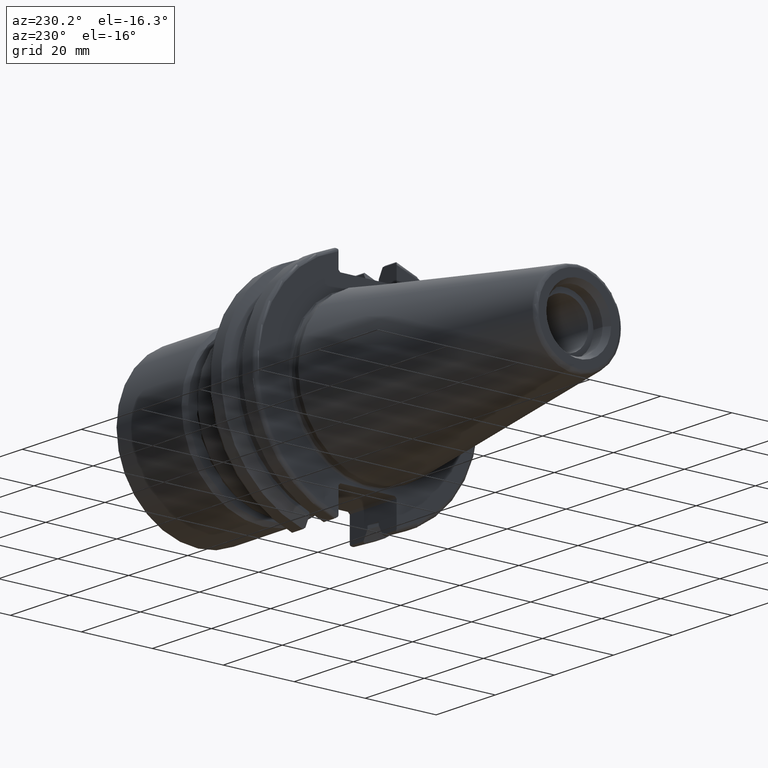
[diagram: clean part render]
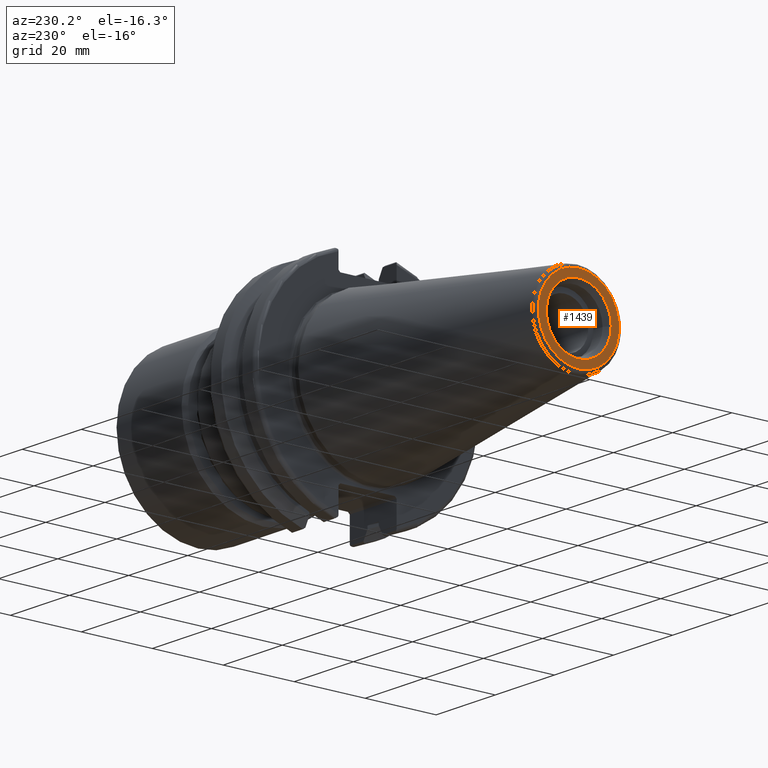
[diagram: same view with one face highlighted and labeled with its STEP entity id]
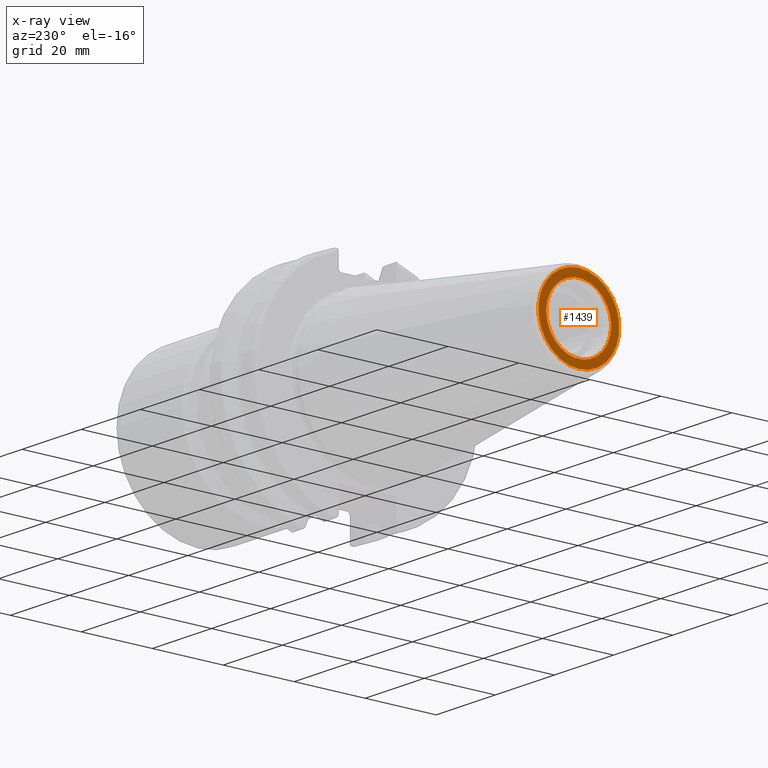
[diagram: x-ray of the same camera — body ghosted, the highlighted face saturated]
A machine part, auxiliary view. The second image highlights one B-rep face of the part: STEP entity #1439.
The next image is the same camera in x-ray: the body ghosted, the highlighted face saturated — about 0% of this face is hidden behind the body in this view.
In plain terms, the highlighted planar face has unit normal (-1, 0, 0).
Its self-contained STEP definition (entity closure, byte-faithful):
#301=FACE_BOUND('',#628,.T.);
#321=PLANE('',#1663);
#548=FACE_OUTER_BOUND('',#627,.T.);
#627=EDGE_LOOP('',(#1224));
#628=EDGE_LOOP('',(#1225));
#712=CIRCLE('',#1662,11.4071305970304);
#713=CIRCLE('',#1664,9.15);
#833=VERTEX_POINT('',#2558);
#834=VERTEX_POINT('',#2562);
#981=EDGE_CURVE('',#833,#833,#712,.T.);
#982=EDGE_CURVE('',#834,#834,#713,.T.);
#1224=ORIENTED_EDGE('',*,*,#981,.F.);
#1225=ORIENTED_EDGE('',*,*,#982,.T.);
#1439=ADVANCED_FACE('',(#548,#301),#321,.T.);
#1662=AXIS2_PLACEMENT_3D('',#2560,#1963,#1964);
#1663=AXIS2_PLACEMENT_3D('',#2561,#1965,#1966);
#1664=AXIS2_PLACEMENT_3D('',#2563,#1967,#1968);
#1963=DIRECTION('center_axis',(1.,0.,0.));
#1964=DIRECTION('ref_axis',(0.,-1.,1.83697019872103E-16));
#1965=DIRECTION('center_axis',(-1.,0.,0.));
#1966=DIRECTION('ref_axis',(0.,0.,1.));
#1967=DIRECTION('center_axis',(1.,0.,0.));
#1968=DIRECTION('ref_axis',(0.,0.,-1.));
#2558=CARTESIAN_POINT('',(-68.25,-1.39697059731091E-15,11.4071305970304));
#2560=CARTESIAN_POINT('Origin',(-68.25,0.,0.));
#2561=CARTESIAN_POINT('Origin',(-68.25,12.271875,0.));
#2562=CARTESIAN_POINT('',(-68.25,-9.15,-1.12055182121983E-15));
#2563=CARTESIAN_POINT('Origin',(-68.25,0.,0.));